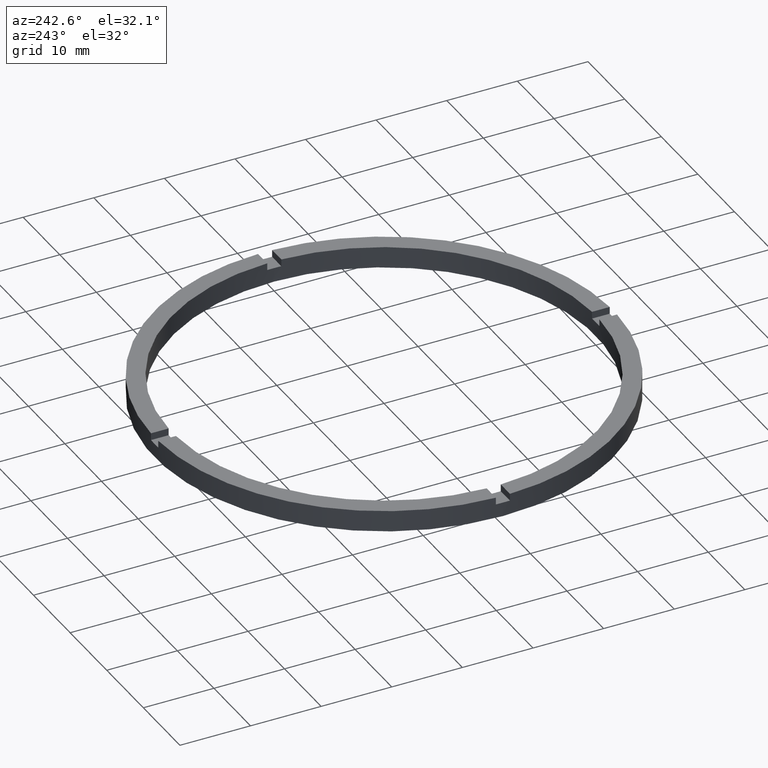
[diagram: clean part render]
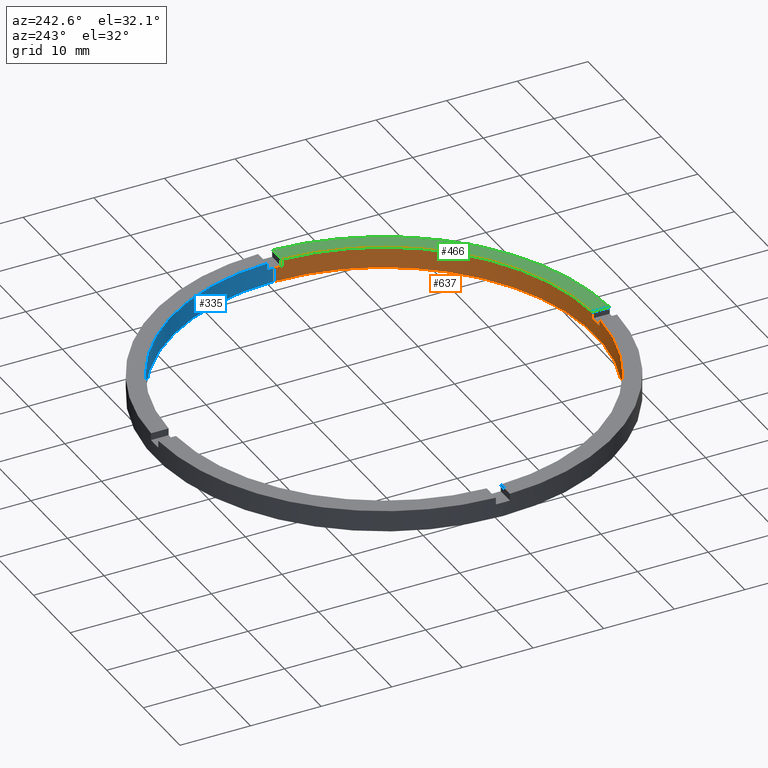
[diagram: same view with three faces highlighted in distinct colors, each labeled with its STEP entity id]
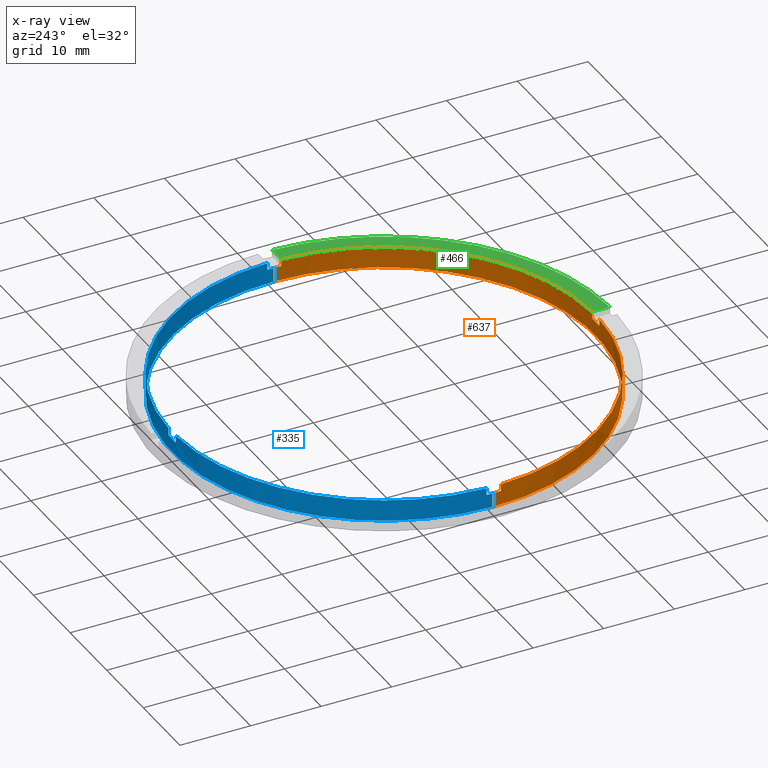
[diagram: x-ray of the same camera — body ghosted, the three highlighted faces saturated]
A machine part, auxiliary view with three faces highlighted in distinct colors.
The next image is the same camera in x-ray (body ghosted, the three faces saturated) — at least one of them is partly hidden behind the body in this view.
Their STEP definitions:

[orange] entity #637 — the highlighted cylindrical surface (partial cylindrical patch) has radius 30 mm, axis along (-0, -0, -1).
#3 = CIRCLE ( 'NONE', #516, 30.00000000000000000 ) ;
#15 = DIRECTION ( 'NONE',  ( 0.000000000000000000, 0.000000000000000000, 1.000000000000000000 ) ) ;
#21 = LINE ( 'NONE', #365, #528 ) ;
#23 = ORIENTED_EDGE ( 'NONE', *, *, #160, .F. ) ;
#36 = ORIENTED_EDGE ( 'NONE', *, *, #359, .F. ) ;
#37 = LINE ( 'NONE', #634, #50 ) ;
#49 = CARTESIAN_POINT ( 'NONE',  ( 30.00000000000000000, 3.673940397442059178E-15, 0.000000000000000000 ) ) ;
#50 = VECTOR ( 'NONE', #579, 1000.000000000000000 ) ;
#56 = LINE ( 'NONE', #666, #324 ) ;
#66 = DIRECTION ( 'NONE',  ( 1.000000000000000000, 0.000000000000000000, 0.000000000000000000 ) ) ;
#94 = CIRCLE ( 'NONE', #334, 30.00000000000000000 ) ;
#101 = CARTESIAN_POINT ( 'NONE',  ( 0.9999999999998384625, -29.98332870112990278, 2.000000000000000000 ) ) ;
#109 = CARTESIAN_POINT ( 'NONE',  ( 30.00000000000000000, 3.673940397442059178E-15, 3.000000000000000000 ) ) ;
#124 = LINE ( 'NONE', #642, #735 ) ;
#135 = VERTEX_POINT ( 'NONE', #167 ) ;
#144 = EDGE_CURVE ( 'NONE', #234, #312, #265, .T. ) ;
#145 = EDGE_CURVE ( 'NONE', #494, #325, #3, .T. ) ;
#152 = CARTESIAN_POINT ( 'NONE',  ( 0.000000000000000000, 0.000000000000000000, 3.000000000000000000 ) ) ;
#154 = AXIS2_PLACEMENT_3D ( 'NONE', #475, #463, #767 ) ;
#157 = ORIENTED_EDGE ( 'NONE', *, *, #384, .T. ) ;
#160 = EDGE_CURVE ( 'NONE', #456, #752, #21, .T. ) ;
#163 = AXIS2_PLACEMENT_3D ( 'NONE', #591, #546, #66 ) ;
#165 = ORIENTED_EDGE ( 'NONE', *, *, #381, .F. ) ;
#167 = CARTESIAN_POINT ( 'NONE',  ( -29.98332870112989568, -1.000000000000025535, 3.000000000000000000 ) ) ;
#176 = DIRECTION ( 'NONE',  ( 0.000000000000000000, 0.000000000000000000, 1.000000000000000000 ) ) ;
#213 = CARTESIAN_POINT ( 'NONE',  ( 29.98332870112989212, -1.000000000000158762, 3.000000000000000000 ) ) ;
#217 = DIRECTION ( 'NONE',  ( -0.000000000000000000, -0.000000000000000000, -1.000000000000000000 ) ) ;
#221 = EDGE_CURVE ( 'NONE', #572, #227, #532, .T. ) ;
#227 = VERTEX_POINT ( 'NONE', #49 ) ;
#234 = VERTEX_POINT ( 'NONE', #523 ) ;
#237 = ORIENTED_EDGE ( 'NONE', *, *, #221, .T. ) ;
#246 = LINE ( 'NONE', #776, #763 ) ;
#252 = DIRECTION ( 'NONE',  ( 1.000000000000000000, 0.000000000000000000, 0.000000000000000000 ) ) ;
#254 = DIRECTION ( 'NONE',  ( 1.000000000000000000, 0.000000000000000000, 0.000000000000000000 ) ) ;
#265 = CIRCLE ( 'NONE', #589, 30.00000000000000000 ) ;
#267 = CARTESIAN_POINT ( 'NONE',  ( -30.00000000000000000, 0.000000000000000000, 2.000000000000000000 ) ) ;
#271 = DIRECTION ( 'NONE',  ( -0.000000000000000000, -0.000000000000000000, -1.000000000000000000 ) ) ;
#275 = DIRECTION ( 'NONE',  ( 0.000000000000000000, 0.000000000000000000, 1.000000000000000000 ) ) ;
#277 = CYLINDRICAL_SURFACE ( 'NONE', #525, 30.00000000000000000 ) ;
#278 = ORIENTED_EDGE ( 'NONE', *, *, #144, .T. ) ;
#287 = FACE_OUTER_BOUND ( 'NONE', #425, .T. ) ;
#296 = EDGE_CURVE ( 'NONE', #326, #312, #124, .T. ) ;
#312 = VERTEX_POINT ( 'NONE', #213 ) ;
#317 = DIRECTION ( 'NONE',  ( 1.000000000000000000, 0.000000000000000000, 0.000000000000000000 ) ) ;
#323 = ORIENTED_EDGE ( 'NONE', *, *, #474, .F. ) ;
#324 = VECTOR ( 'NONE', #217, 1000.000000000000000 ) ;
#325 = VERTEX_POINT ( 'NONE', #758 ) ;
#326 = VERTEX_POINT ( 'NONE', #410 ) ;
#327 = CARTESIAN_POINT ( 'NONE',  ( 0.000000000000000000, 0.000000000000000000, 0.000000000000000000 ) ) ;
#334 = AXIS2_PLACEMENT_3D ( 'NONE', #627, #15, #254 ) ;
#359 = EDGE_CURVE ( 'NONE', #135, #325, #56, .T. ) ;
#365 = CARTESIAN_POINT ( 'NONE',  ( -1.000000000000161648, -29.98332870112989212, 3.000000000000000000 ) ) ;
#371 = CARTESIAN_POINT ( 'NONE',  ( 0.000000000000000000, 0.000000000000000000, 3.000000000000000000 ) ) ;
#376 = DIRECTION ( 'NONE',  ( 1.000000000000000000, 0.000000000000000000, 0.000000000000000000 ) ) ;
#381 = EDGE_CURVE ( 'NONE', #494, #396, #246, .T. ) ;
#384 = EDGE_CURVE ( 'NONE', #456, #722, #510, .T. ) ;
#396 = VERTEX_POINT ( 'NONE', #601 ) ;
#403 = DIRECTION ( 'NONE',  ( -0.000000000000000000, -0.000000000000000000, -1.000000000000000000 ) ) ;
#410 = CARTESIAN_POINT ( 'NONE',  ( 29.98332870112989212, -1.000000000000158762, 2.000000000000000000 ) ) ;
#417 = DIRECTION ( 'NONE',  ( -0.000000000000000000, -0.000000000000000000, -1.000000000000000000 ) ) ;
#420 = CARTESIAN_POINT ( 'NONE',  ( 0.000000000000000000, 0.000000000000000000, 2.000000000000000000 ) ) ;
#424 = ORIENTED_EDGE ( 'NONE', *, *, #597, .T. ) ;
#425 = EDGE_LOOP ( 'NONE', ( #424, #237, #323, #165, #502, #36, #504, #23, #157, #699, #278, #685 ) ) ;
#438 = EDGE_CURVE ( 'NONE', #135, #752, #611, .T. ) ;
#456 = VERTEX_POINT ( 'NONE', #612 ) ;
#463 = DIRECTION ( 'NONE',  ( -0.000000000000000000, 0.000000000000000000, 1.000000000000000000 ) ) ;
#474 = EDGE_CURVE ( 'NONE', #396, #227, #610, .T. ) ;
#475 = CARTESIAN_POINT ( 'NONE',  ( 0.000000000000000000, 0.000000000000000000, 2.000000000000000000 ) ) ;
#485 = DIRECTION ( 'NONE',  ( 0.000000000000000000, 0.000000000000000000, 1.000000000000000000 ) ) ;
#494 = VERTEX_POINT ( 'NONE', #267 ) ;
#502 = ORIENTED_EDGE ( 'NONE', *, *, #145, .T. ) ;
#504 = ORIENTED_EDGE ( 'NONE', *, *, #438, .T. ) ;
#510 = CIRCLE ( 'NONE', #154, 30.00000000000000000 ) ;
#516 = AXIS2_PLACEMENT_3D ( 'NONE', #420, #485, #376 ) ;
#523 = CARTESIAN_POINT ( 'NONE',  ( 0.9999999999998384625, -29.98332870112990278, 3.000000000000000000 ) ) ;
#525 = AXIS2_PLACEMENT_3D ( 'NONE', #152, #403, #688 ) ;
#528 = VECTOR ( 'NONE', #275, 1000.000000000000000 ) ;
#532 = LINE ( 'NONE', #109, #639 ) ;
#546 = DIRECTION ( 'NONE',  ( 0.000000000000000000, 0.000000000000000000, 1.000000000000000000 ) ) ;
#572 = VERTEX_POINT ( 'NONE', #683 ) ;
#579 = DIRECTION ( 'NONE',  ( -0.000000000000000000, -0.000000000000000000, -1.000000000000000000 ) ) ;
#589 = AXIS2_PLACEMENT_3D ( 'NONE', #371, #710, #317 ) ;
#591 = CARTESIAN_POINT ( 'NONE',  ( 0.000000000000000000, 0.000000000000000000, 3.000000000000000000 ) ) ;
#597 = EDGE_CURVE ( 'NONE', #326, #572, #94, .T. ) ;
#601 = CARTESIAN_POINT ( 'NONE',  ( -30.00000000000000000, 0.000000000000000000, 0.000000000000000000 ) ) ;
#610 = CIRCLE ( 'NONE', #686, 30.00000000000000000 ) ;
#611 = CIRCLE ( 'NONE', #163, 30.00000000000000000 ) ;
#612 = CARTESIAN_POINT ( 'NONE',  ( -1.000000000000161648, -29.98332870112989212, 2.000000000000000000 ) ) ;
#627 = CARTESIAN_POINT ( 'NONE',  ( 0.000000000000000000, 0.000000000000000000, 2.000000000000000000 ) ) ;
#634 = CARTESIAN_POINT ( 'NONE',  ( 0.9999999999998384625, -29.98332870112990278, 3.000000000000000000 ) ) ;
#637 = ADVANCED_FACE ( 'NONE', ( #287 ), #277, .F. ) ;
#639 = VECTOR ( 'NONE', #271, 1000.000000000000000 ) ;
#642 = CARTESIAN_POINT ( 'NONE',  ( 29.98332870112989212, -1.000000000000158762, 3.000000000000000000 ) ) ;
#666 = CARTESIAN_POINT ( 'NONE',  ( -29.98332870112989568, -1.000000000000025535, 3.000000000000000000 ) ) ;
#676 = EDGE_CURVE ( 'NONE', #234, #722, #37, .T. ) ;
#683 = CARTESIAN_POINT ( 'NONE',  ( 30.00000000000000000, 3.673940397442059178E-15, 2.000000000000000000 ) ) ;
#685 = ORIENTED_EDGE ( 'NONE', *, *, #296, .F. ) ;
#686 = AXIS2_PLACEMENT_3D ( 'NONE', #327, #176, #252 ) ;
#688 = DIRECTION ( 'NONE',  ( -1.000000000000000000, 0.000000000000000000, 0.000000000000000000 ) ) ;
#694 = DIRECTION ( 'NONE',  ( 0.000000000000000000, 0.000000000000000000, 1.000000000000000000 ) ) ;
#699 = ORIENTED_EDGE ( 'NONE', *, *, #676, .F. ) ;
#710 = DIRECTION ( 'NONE',  ( 0.000000000000000000, 0.000000000000000000, 1.000000000000000000 ) ) ;
#722 = VERTEX_POINT ( 'NONE', #101 ) ;
#735 = VECTOR ( 'NONE', #694, 1000.000000000000000 ) ;
#752 = VERTEX_POINT ( 'NONE', #764 ) ;
#758 = CARTESIAN_POINT ( 'NONE',  ( -29.98332870112989568, -1.000000000000025535, 2.000000000000000000 ) ) ;
#763 = VECTOR ( 'NONE', #417, 1000.000000000000000 ) ;
#764 = CARTESIAN_POINT ( 'NONE',  ( -1.000000000000161648, -29.98332870112989212, 3.000000000000000000 ) ) ;
#767 = DIRECTION ( 'NONE',  ( 1.000000000000000000, 0.000000000000000000, 0.000000000000000000 ) ) ;
#776 = CARTESIAN_POINT ( 'NONE',  ( -30.00000000000000000, 0.000000000000000000, 3.000000000000000000 ) ) ;

[blue] entity #335 — the highlighted cylindrical surface (partial cylindrical patch) has radius 30 mm, axis along (-0, -0, -1).
#10 = EDGE_CURVE ( 'NONE', #573, #136, #247, .T. ) ;
#27 = CARTESIAN_POINT ( 'NONE',  ( 0.000000000000000000, 0.000000000000000000, 3.000000000000000000 ) ) ;
#44 = VERTEX_POINT ( 'NONE', #675 ) ;
#49 = CARTESIAN_POINT ( 'NONE',  ( 30.00000000000000000, 3.673940397442059178E-15, 0.000000000000000000 ) ) ;
#53 = CYLINDRICAL_SURFACE ( 'NONE', #366, 30.00000000000000000 ) ;
#65 = EDGE_CURVE ( 'NONE', #573, #716, #259, .T. ) ;
#74 = DIRECTION ( 'NONE',  ( 1.000000000000000000, 0.000000000000000000, 0.000000000000000000 ) ) ;
#84 = LINE ( 'NONE', #433, #352 ) ;
#95 = CARTESIAN_POINT ( 'NONE',  ( -1.000000000000024647, 29.98332870112989568, 3.000000000000000000 ) ) ;
#103 = DIRECTION ( 'NONE',  ( 0.000000000000000000, 0.000000000000000000, 1.000000000000000000 ) ) ;
#107 = DIRECTION ( 'NONE',  ( -0.000000000000000000, -0.000000000000000000, -1.000000000000000000 ) ) ;
#109 = CARTESIAN_POINT ( 'NONE',  ( 30.00000000000000000, 3.673940397442059178E-15, 3.000000000000000000 ) ) ;
#119 = VECTOR ( 'NONE', #593, 1000.000000000000000 ) ;
#136 = VERTEX_POINT ( 'NONE', #305 ) ;
#140 = AXIS2_PLACEMENT_3D ( 'NONE', #452, #684, #631 ) ;
#150 = CARTESIAN_POINT ( 'NONE',  ( 0.9999999999999753530, 29.98332870112989923, 2.000000000000000000 ) ) ;
#159 = CARTESIAN_POINT ( 'NONE',  ( 29.98332870112990278, 0.9999999999998412381, 3.000000000000000000 ) ) ;
#162 = VERTEX_POINT ( 'NONE', #648 ) ;
#173 = CARTESIAN_POINT ( 'NONE',  ( -1.000000000000024647, 29.98332870112989568, 3.000000000000000000 ) ) ;
#177 = AXIS2_PLACEMENT_3D ( 'NONE', #580, #655, #418 ) ;
#186 = ORIENTED_EDGE ( 'NONE', *, *, #416, .T. ) ;
#187 = DIRECTION ( 'NONE',  ( 1.000000000000000000, 0.000000000000000000, 0.000000000000000000 ) ) ;
#218 = ORIENTED_EDGE ( 'NONE', *, *, #381, .T. ) ;
#220 = ORIENTED_EDGE ( 'NONE', *, *, #221, .F. ) ;
#221 = EDGE_CURVE ( 'NONE', #572, #227, #532, .T. ) ;
#222 = CARTESIAN_POINT ( 'NONE',  ( 0.000000000000000000, 0.000000000000000000, 3.000000000000000000 ) ) ;
#226 = VECTOR ( 'NONE', #778, 1000.000000000000000 ) ;
#227 = VERTEX_POINT ( 'NONE', #49 ) ;
#235 = EDGE_CURVE ( 'NONE', #314, #162, #636, .T. ) ;
#246 = LINE ( 'NONE', #776, #763 ) ;
#247 = CIRCLE ( 'NONE', #687, 30.00000000000000000 ) ;
#248 = CARTESIAN_POINT ( 'NONE',  ( 0.9999999999999753530, 29.98332870112989923, 3.000000000000000000 ) ) ;
#253 = EDGE_CURVE ( 'NONE', #314, #480, #390, .T. ) ;
#259 = LINE ( 'NONE', #173, #226 ) ;
#267 = CARTESIAN_POINT ( 'NONE',  ( -30.00000000000000000, 0.000000000000000000, 2.000000000000000000 ) ) ;
#269 = EDGE_CURVE ( 'NONE', #44, #494, #385, .T. ) ;
#271 = DIRECTION ( 'NONE',  ( -0.000000000000000000, -0.000000000000000000, -1.000000000000000000 ) ) ;
#299 = ORIENTED_EDGE ( 'NONE', *, *, #253, .T. ) ;
#305 = CARTESIAN_POINT ( 'NONE',  ( -29.98332870112989923, 0.9999999999999744649, 3.000000000000000000 ) ) ;
#309 = ORIENTED_EDGE ( 'NONE', *, *, #65, .F. ) ;
#314 = VERTEX_POINT ( 'NONE', #658 ) ;
#335 = ADVANCED_FACE ( 'NONE', ( #733 ), #53, .F. ) ;
#348 = CIRCLE ( 'NONE', #460, 30.00000000000000000 ) ;
#352 = VECTOR ( 'NONE', #498, 1000.000000000000000 ) ;
#361 = CARTESIAN_POINT ( 'NONE',  ( 0.9999999999999753530, 29.98332870112989923, 3.000000000000000000 ) ) ;
#363 = CIRCLE ( 'NONE', #388, 30.00000000000000000 ) ;
#366 = AXIS2_PLACEMENT_3D ( 'NONE', #222, #107, #530 ) ;
#372 = DIRECTION ( 'NONE',  ( 0.000000000000000000, 0.000000000000000000, 1.000000000000000000 ) ) ;
#381 = EDGE_CURVE ( 'NONE', #494, #396, #246, .T. ) ;
#385 = CIRCLE ( 'NONE', #177, 30.00000000000000000 ) ;
#388 = AXIS2_PLACEMENT_3D ( 'NONE', #575, #621, #677 ) ;
#390 = CIRCLE ( 'NONE', #140, 30.00000000000000000 ) ;
#393 = ORIENTED_EDGE ( 'NONE', *, *, #235, .F. ) ;
#396 = VERTEX_POINT ( 'NONE', #601 ) ;
#402 = ORIENTED_EDGE ( 'NONE', *, *, #556, .T. ) ;
#416 = EDGE_CURVE ( 'NONE', #729, #716, #511, .T. ) ;
#417 = DIRECTION ( 'NONE',  ( -0.000000000000000000, -0.000000000000000000, -1.000000000000000000 ) ) ;
#418 = DIRECTION ( 'NONE',  ( 1.000000000000000000, 0.000000000000000000, 0.000000000000000000 ) ) ;
#426 = CARTESIAN_POINT ( 'NONE',  ( 0.000000000000000000, 0.000000000000000000, 2.000000000000000000 ) ) ;
#433 = CARTESIAN_POINT ( 'NONE',  ( -29.98332870112989923, 0.9999999999999744649, 3.000000000000000000 ) ) ;
#440 = CARTESIAN_POINT ( 'NONE',  ( 0.000000000000000000, 0.000000000000000000, 2.000000000000000000 ) ) ;
#446 = ORIENTED_EDGE ( 'NONE', *, *, #10, .T. ) ;
#450 = DIRECTION ( 'NONE',  ( 0.000000000000000000, 0.000000000000000000, 1.000000000000000000 ) ) ;
#452 = CARTESIAN_POINT ( 'NONE',  ( 0.000000000000000000, 0.000000000000000000, 3.000000000000000000 ) ) ;
#460 = AXIS2_PLACEMENT_3D ( 'NONE', #440, #450, #187 ) ;
#478 = EDGE_CURVE ( 'NONE', #44, #136, #84, .T. ) ;
#480 = VERTEX_POINT ( 'NONE', #248 ) ;
#488 = DIRECTION ( 'NONE',  ( 1.000000000000000000, 0.000000000000000000, 0.000000000000000000 ) ) ;
#494 = VERTEX_POINT ( 'NONE', #267 ) ;
#498 = DIRECTION ( 'NONE',  ( 0.000000000000000000, 0.000000000000000000, 1.000000000000000000 ) ) ;
#511 = CIRCLE ( 'NONE', #671, 30.00000000000000000 ) ;
#521 = DIRECTION ( 'NONE',  ( 0.000000000000000000, -0.000000000000000000, 1.000000000000000000 ) ) ;
#530 = DIRECTION ( 'NONE',  ( -1.000000000000000000, 0.000000000000000000, 0.000000000000000000 ) ) ;
#532 = LINE ( 'NONE', #109, #639 ) ;
#551 = ORIENTED_EDGE ( 'NONE', *, *, #656, .F. ) ;
#556 = EDGE_CURVE ( 'NONE', #572, #162, #348, .T. ) ;
#563 = VECTOR ( 'NONE', #103, 1000.000000000000000 ) ;
#566 = LINE ( 'NONE', #361, #563 ) ;
#572 = VERTEX_POINT ( 'NONE', #683 ) ;
#573 = VERTEX_POINT ( 'NONE', #95 ) ;
#575 = CARTESIAN_POINT ( 'NONE',  ( 0.000000000000000000, 0.000000000000000000, 0.000000000000000000 ) ) ;
#580 = CARTESIAN_POINT ( 'NONE',  ( 0.000000000000000000, 0.000000000000000000, 2.000000000000000000 ) ) ;
#588 = EDGE_CURVE ( 'NONE', #227, #396, #363, .T. ) ;
#593 = DIRECTION ( 'NONE',  ( -0.000000000000000000, -0.000000000000000000, -1.000000000000000000 ) ) ;
#601 = CARTESIAN_POINT ( 'NONE',  ( -30.00000000000000000, 0.000000000000000000, 0.000000000000000000 ) ) ;
#621 = DIRECTION ( 'NONE',  ( 0.000000000000000000, 0.000000000000000000, 1.000000000000000000 ) ) ;
#631 = DIRECTION ( 'NONE',  ( 1.000000000000000000, 0.000000000000000000, 0.000000000000000000 ) ) ;
#636 = LINE ( 'NONE', #159, #119 ) ;
#639 = VECTOR ( 'NONE', #271, 1000.000000000000000 ) ;
#648 = CARTESIAN_POINT ( 'NONE',  ( 29.98332870112990278, 0.9999999999998412381, 2.000000000000000000 ) ) ;
#650 = ORIENTED_EDGE ( 'NONE', *, *, #588, .F. ) ;
#655 = DIRECTION ( 'NONE',  ( 0.000000000000000000, 0.000000000000000000, 1.000000000000000000 ) ) ;
#656 = EDGE_CURVE ( 'NONE', #729, #480, #566, .T. ) ;
#658 = CARTESIAN_POINT ( 'NONE',  ( 29.98332870112990278, 0.9999999999998412381, 3.000000000000000000 ) ) ;
#661 = ORIENTED_EDGE ( 'NONE', *, *, #478, .F. ) ;
#671 = AXIS2_PLACEMENT_3D ( 'NONE', #426, #521, #488 ) ;
#675 = CARTESIAN_POINT ( 'NONE',  ( -29.98332870112989923, 0.9999999999999744649, 2.000000000000000000 ) ) ;
#677 = DIRECTION ( 'NONE',  ( 1.000000000000000000, 0.000000000000000000, 0.000000000000000000 ) ) ;
#683 = CARTESIAN_POINT ( 'NONE',  ( 30.00000000000000000, 3.673940397442059178E-15, 2.000000000000000000 ) ) ;
#684 = DIRECTION ( 'NONE',  ( 0.000000000000000000, 0.000000000000000000, 1.000000000000000000 ) ) ;
#687 = AXIS2_PLACEMENT_3D ( 'NONE', #27, #372, #74 ) ;
#691 = EDGE_LOOP ( 'NONE', ( #220, #402, #393, #299, #551, #186, #309, #446, #661, #736, #218, #650 ) ) ;
#716 = VERTEX_POINT ( 'NONE', #759 ) ;
#729 = VERTEX_POINT ( 'NONE', #150 ) ;
#733 = FACE_OUTER_BOUND ( 'NONE', #691, .T. ) ;
#736 = ORIENTED_EDGE ( 'NONE', *, *, #269, .T. ) ;
#759 = CARTESIAN_POINT ( 'NONE',  ( -1.000000000000024647, 29.98332870112989568, 2.000000000000000000 ) ) ;
#763 = VECTOR ( 'NONE', #417, 1000.000000000000000 ) ;
#776 = CARTESIAN_POINT ( 'NONE',  ( -30.00000000000000000, 0.000000000000000000, 3.000000000000000000 ) ) ;
#778 = DIRECTION ( 'NONE',  ( -0.000000000000000000, -0.000000000000000000, -1.000000000000000000 ) ) ;

[green] entity #466 — the highlighted planar face has unit normal (0, 0, 1).
#14 = VECTOR ( 'NONE', #225, 1000.000000000000000 ) ;
#57 = EDGE_LOOP ( 'NONE', ( #462, #406, #256, #481 ) ) ;
#87 = FACE_OUTER_BOUND ( 'NONE', #57, .T. ) ;
#144 = EDGE_CURVE ( 'NONE', #234, #312, #265, .T. ) ;
#213 = CARTESIAN_POINT ( 'NONE',  ( 29.98332870112989212, -1.000000000000158762, 3.000000000000000000 ) ) ;
#225 = DIRECTION ( 'NONE',  ( -1.301042606982605074E-16, 1.000000000000000000, -0.000000000000000000 ) ) ;
#229 = VERTEX_POINT ( 'NONE', #399 ) ;
#230 = AXIS2_PLACEMENT_3D ( 'NONE', #429, #613, #721 ) ;
#234 = VERTEX_POINT ( 'NONE', #523 ) ;
#256 = ORIENTED_EDGE ( 'NONE', *, *, #765, .F. ) ;
#265 = CIRCLE ( 'NONE', #589, 30.00000000000000000 ) ;
#280 = CARTESIAN_POINT ( 'NONE',  ( 22.49999999999999645, -1.000000000000159206, 3.000000000000000000 ) ) ;
#284 = LINE ( 'NONE', #280, #557 ) ;
#308 = CIRCLE ( 'NONE', #423, 32.50000000000000000 ) ;
#312 = VERTEX_POINT ( 'NONE', #213 ) ;
#317 = DIRECTION ( 'NONE',  ( 1.000000000000000000, 0.000000000000000000, 0.000000000000000000 ) ) ;
#362 = CARTESIAN_POINT ( 'NONE',  ( 0.000000000000000000, 0.000000000000000000, 3.000000000000000000 ) ) ;
#370 = PLANE ( 'NONE',  #230 ) ;
#371 = CARTESIAN_POINT ( 'NONE',  ( 0.000000000000000000, 0.000000000000000000, 3.000000000000000000 ) ) ;
#399 = CARTESIAN_POINT ( 'NONE',  ( 32.48461174156157227, -1.000000000000158540, 3.000000000000000000 ) ) ;
#406 = ORIENTED_EDGE ( 'NONE', *, *, #144, .F. ) ;
#423 = AXIS2_PLACEMENT_3D ( 'NONE', #362, #465, #630 ) ;
#429 = CARTESIAN_POINT ( 'NONE',  ( 0.000000000000000000, 0.000000000000000000, 3.000000000000000000 ) ) ;
#462 = ORIENTED_EDGE ( 'NONE', *, *, #662, .F. ) ;
#464 = DIRECTION ( 'NONE',  ( 1.000000000000000000, 6.505213034913022906E-17, 0.000000000000000000 ) ) ;
#465 = DIRECTION ( 'NONE',  ( 0.000000000000000000, 0.000000000000000000, 1.000000000000000000 ) ) ;
#466 = ADVANCED_FACE ( 'NONE', ( #87 ), #370, .T. ) ;
#481 = ORIENTED_EDGE ( 'NONE', *, *, #680, .T. ) ;
#523 = CARTESIAN_POINT ( 'NONE',  ( 0.9999999999998384625, -29.98332870112990278, 3.000000000000000000 ) ) ;
#541 = LINE ( 'NONE', #712, #14 ) ;
#557 = VECTOR ( 'NONE', #464, 1000.000000000000000 ) ;
#589 = AXIS2_PLACEMENT_3D ( 'NONE', #371, #710, #317 ) ;
#613 = DIRECTION ( 'NONE',  ( 0.000000000000000000, 0.000000000000000000, 1.000000000000000000 ) ) ;
#630 = DIRECTION ( 'NONE',  ( 1.000000000000000000, 0.000000000000000000, 0.000000000000000000 ) ) ;
#641 = CARTESIAN_POINT ( 'NONE',  ( 0.9999999999998386846, -32.48461174156157938, 3.000000000000000000 ) ) ;
#662 = EDGE_CURVE ( 'NONE', #312, #229, #284, .T. ) ;
#679 = VERTEX_POINT ( 'NONE', #641 ) ;
#680 = EDGE_CURVE ( 'NONE', #679, #229, #308, .T. ) ;
#710 = DIRECTION ( 'NONE',  ( 0.000000000000000000, 0.000000000000000000, 1.000000000000000000 ) ) ;
#712 = CARTESIAN_POINT ( 'NONE',  ( 0.9999999999998375744, -22.50000000000018119, 3.000000000000000000 ) ) ;
#721 = DIRECTION ( 'NONE',  ( 1.000000000000000000, 0.000000000000000000, -0.000000000000000000 ) ) ;
#765 = EDGE_CURVE ( 'NONE', #679, #234, #541, .T. ) ;